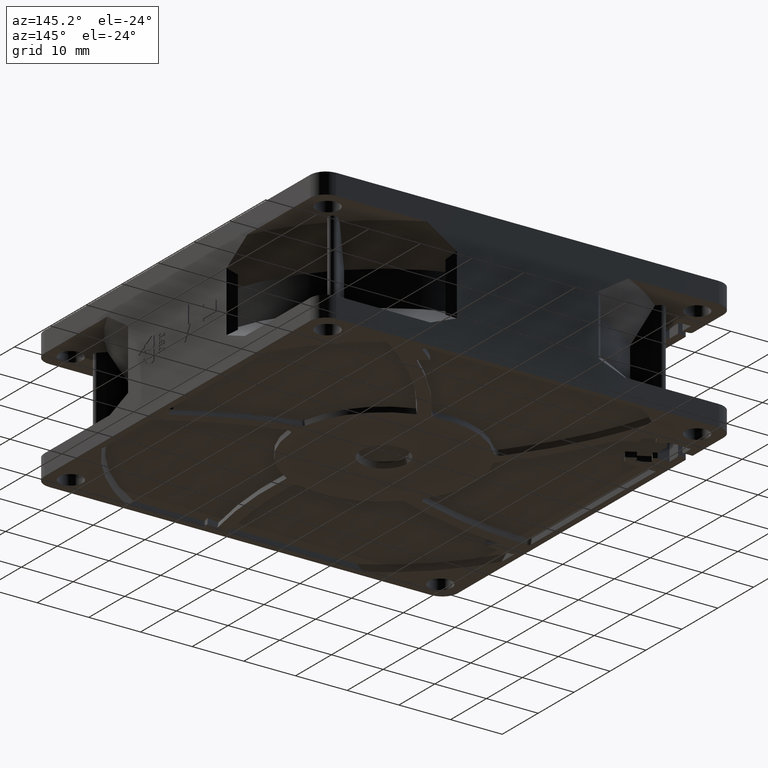
[diagram: clean part render]
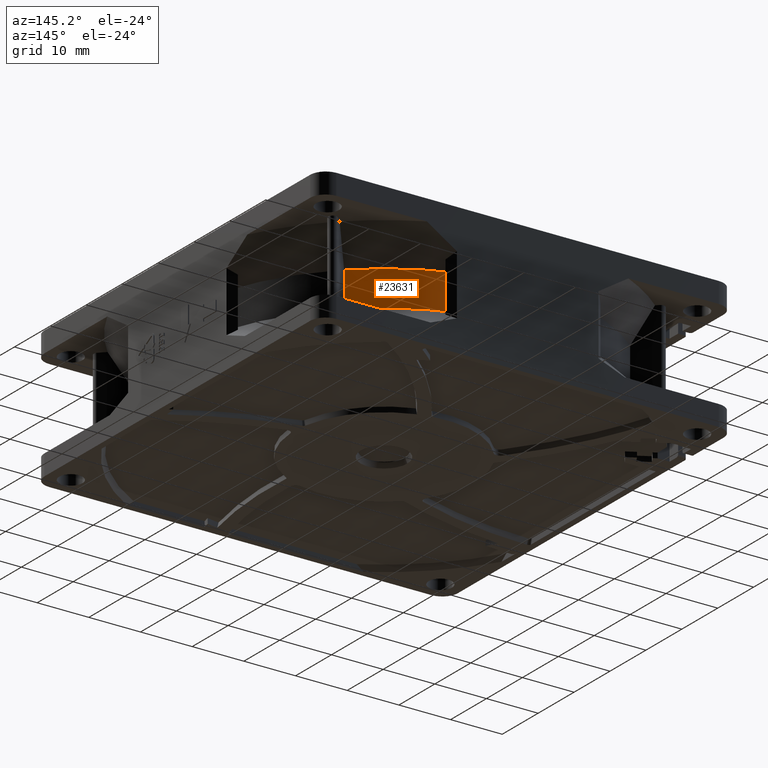
[diagram: same view with one face highlighted and labeled with its STEP entity id]
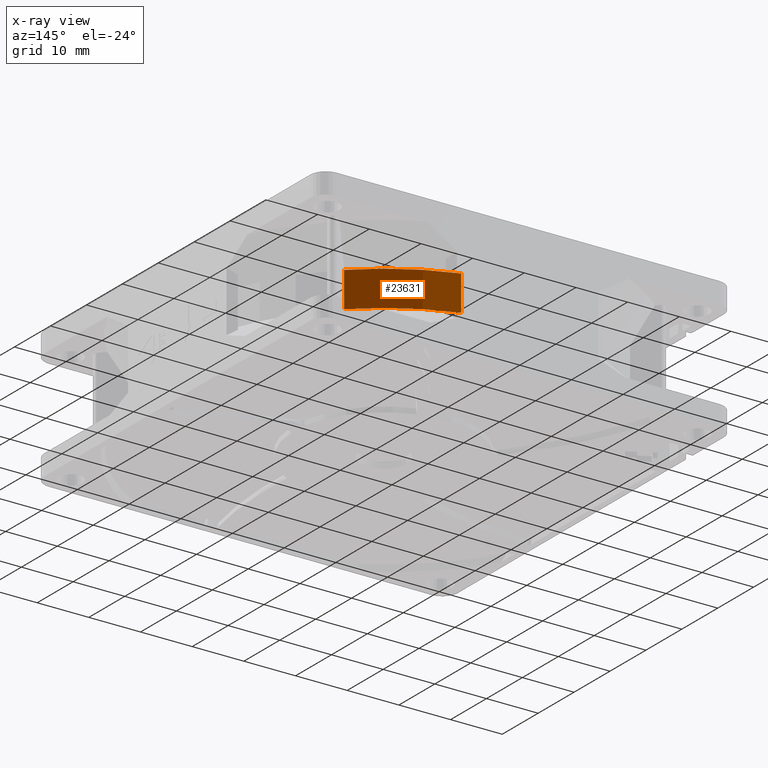
[diagram: x-ray of the same camera — body ghosted, the highlighted face saturated]
A machine part, auxiliary view. The second image highlights one B-rep face of the part: STEP entity #23631.
The next image is the same camera in x-ray: the body ghosted, the highlighted face saturated — about 0% of this face is hidden behind the body in this view.
In plain terms, the highlighted cylindrical surface (partial cylindrical patch) has radius 40.5 mm, axis along (0, 0, -1).
Its self-contained STEP definition (entity closure, byte-faithful):
#3790=CARTESIAN_POINT('',(1.193984924528E1,3.87E1,-1.066887427818E1));
#3797=CARTESIAN_POINT('',(0.E0,0.E0,-1.066887427818E1));
#3798=DIRECTION('',(0.E0,0.E0,1.E0));
#3799=DIRECTION('',(6.921105175666E-1,7.217915429497E-1,0.E0));
#3800=AXIS2_PLACEMENT_3D('',#3797,#3798,#3799);
#3807=CARTESIAN_POINT('',(2.803047596145E1,2.923255748946E1,-1.066887427821E1));
#3831=CARTESIAN_POINT('',(0.E0,0.E0,-1.751681977279E1));
#3832=DIRECTION('',(0.E0,0.E0,1.E0));
#3833=DIRECTION('',(6.921105175666E-1,7.217915429497E-1,0.E0));
#3834=AXIS2_PLACEMENT_3D('',#3831,#3832,#3833);
#3850=DIRECTION('',(0.E0,0.E0,-1.E0));
#3851=VECTOR('',#3850,6.847945494600E0);
#3852=CARTESIAN_POINT('',(2.803047596145E1,2.923255748946E1,-1.066887427821E1));
#3853=LINE('',#3852,#3851);
#3854=DIRECTION('',(0.E0,0.E0,1.E0));
#3855=VECTOR('',#3854,6.847945494612E0);
#3856=CARTESIAN_POINT('',(1.193984924528E1,3.87E1,-1.751681977279E1));
#3857=LINE('',#3856,#3855);
#12283=VERTEX_POINT('',#3790);
#12322=VERTEX_POINT('',#3807);
#12325=CARTESIAN_POINT('',(1.193984924528E1,3.87E1,-1.751681977279E1));
#12326=VERTEX_POINT('',#12325);
#12327=CARTESIAN_POINT('',(2.803047596145E1,2.923255748946E1,
-1.751681977281E1));
#12328=VERTEX_POINT('',#12327);
#23619=CARTESIAN_POINT('',(0.E0,0.E0,-5.047210239861E1));
#23620=DIRECTION('',(0.E0,0.E0,-1.E0));
#23621=DIRECTION('',(-1.E0,0.E0,0.E0));
#23622=AXIS2_PLACEMENT_3D('',#23619,#23620,#23621);
#23623=CYLINDRICAL_SURFACE('',#23622,4.05E1);
#23624=ORIENTED_EDGE('',*,*,#23607,.F.);
#23626=ORIENTED_EDGE('',*,*,#23625,.F.);
#23627=ORIENTED_EDGE('',*,*,#23562,.T.);
#23628=ORIENTED_EDGE('',*,*,#23583,.F.);
#23629=EDGE_LOOP('',(#23624,#23626,#23627,#23628));
#23630=FACE_OUTER_BOUND('',#23629,.F.);
#23631=ADVANCED_FACE('',(#23630),#23623,.T.);
#3801=CIRCLE('',#3800,4.05E1);
#3835=CIRCLE('',#3834,4.05E1);
#23562=EDGE_CURVE('',#12322,#12283,#3801,.T.);
#23583=EDGE_CURVE('',#12326,#12283,#3857,.T.);
#23607=EDGE_CURVE('',#12328,#12326,#3835,.T.);
#23625=EDGE_CURVE('',#12322,#12328,#3853,.T.);